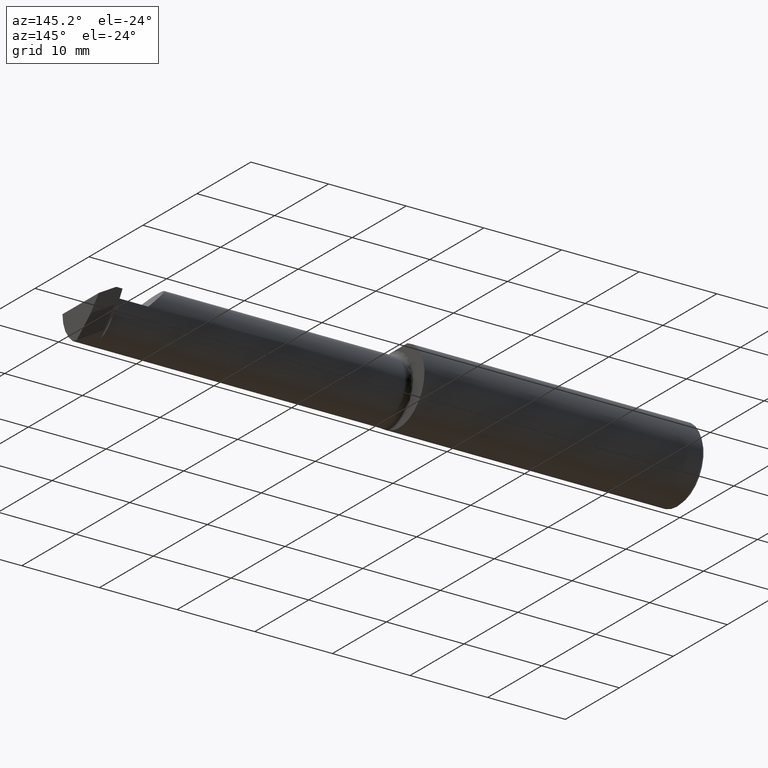
[diagram: clean part render]
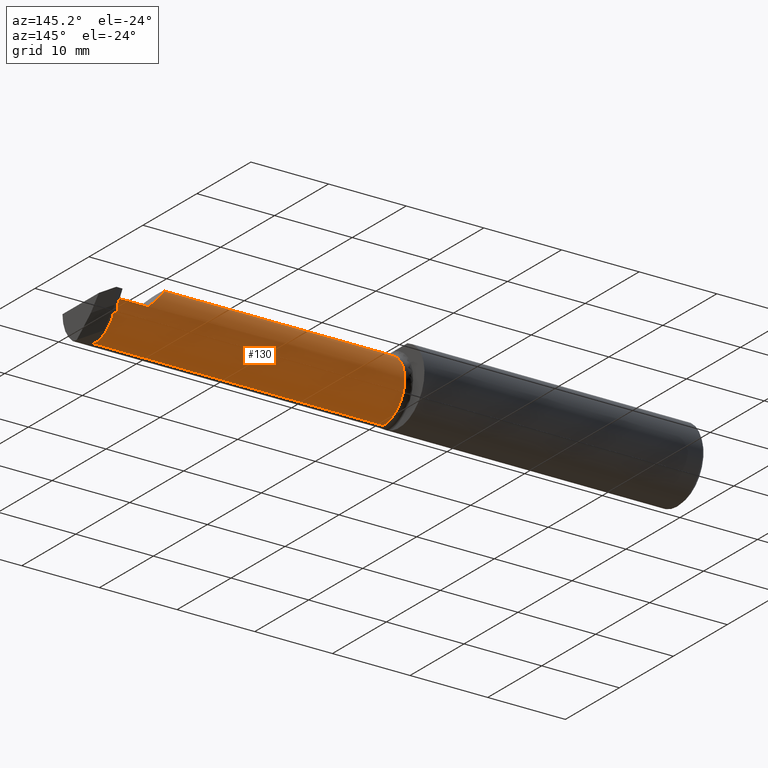
[diagram: same view with one face highlighted and labeled with its STEP entity id]
A machine part, auxiliary view. The second image highlights one B-rep face of the part: STEP entity #130.
In plain terms, the highlighted cylindrical surface (partial cylindrical patch) has radius 3.937 mm, axis along (-1, -0, -0).
Its self-contained STEP definition (entity closure, byte-faithful):
#10 = CARTESIAN_POINT ( 'NONE',  ( 1.425000000000000266, 0.07964999999999992919, -4.469813191451678053E-17 ) ) ;
#15 = CARTESIAN_POINT ( 'NONE',  ( 2.595350000000000268, 0.01528441802401224632, 0.1549999999999999989 ) ) ;
#18 = CIRCLE ( 'NONE', #151, 0.1549999999999999989 ) ;
#22 = CARTESIAN_POINT ( 'NONE',  ( 2.919999999999999485, 0.06139050547019519327, -0.07298653412620365044 ) ) ;
#30 = VERTEX_POINT ( 'NONE', #695 ) ;
#36 = CARTESIAN_POINT ( 'NONE',  ( 2.750000000000000444, -0.07535000000000005582, 0.000000000000000000 ) ) ;
#39 = AXIS2_PLACEMENT_3D ( 'NONE', #783, #477, #629 ) ;
#44 = CARTESIAN_POINT ( 'NONE',  ( 2.897371745677377319, 0.06655594585375997074, -0.06235144369900125216 ) ) ;
#46 = EDGE_LOOP ( 'NONE', ( #476, #926, #763, #946, #843, #685, #187, #140, #903, #776, #109, #464, #247 ) ) ;
#68 = CIRCLE ( 'NONE', #884, 0.1549999999999999989 ) ;
#71 = VERTEX_POINT ( 'NONE', #788 ) ;
#90 = CARTESIAN_POINT ( 'NONE',  ( 2.919999999999999929, -0.02721703491517946799, -0.1473370885830972143 ) ) ;
#109 = ORIENTED_EDGE ( 'NONE', *, *, #439, .T. ) ;
#126 = CARTESIAN_POINT ( 'NONE',  ( 1.425000000000000266, 0.06655594585375997074, -0.06235144369900125216 ) ) ;
#129 = CARTESIAN_POINT ( 'NONE',  ( 1.425000000000000266, 0.06139050547019519327, -0.07298653412620365044 ) ) ;
#130 = ADVANCED_FACE ( 'NONE', ( #848 ), #909, .T. ) ;
#140 = ORIENTED_EDGE ( 'NONE', *, *, #717, .F. ) ;
#151 = AXIS2_PLACEMENT_3D ( 'NONE', #639, #885, #202 ) ;
#156 = DIRECTION ( 'NONE',  ( -1.000000000000000000, -0.000000000000000000, -0.000000000000000000 ) ) ;
#164 = DIRECTION ( 'NONE',  ( 0.000000000000000000, 1.762482576557589218E-15, -1.000000000000000000 ) ) ;
#187 = ORIENTED_EDGE ( 'NONE', *, *, #221, .T. ) ;
#188 = DIRECTION ( 'NONE',  ( -1.000000000000000000, -0.000000000000000000, -0.000000000000000000 ) ) ;
#193 = CARTESIAN_POINT ( 'NONE',  ( 2.916847974081298478, 0.06139050547019519327, -0.07298653412620366432 ) ) ;
#198 = CARTESIAN_POINT ( 'NONE',  ( 2.897371745677377319, 0.06655594585375997074, -0.06235144369900125216 ) ) ;
#201 = VECTOR ( 'NONE', #832, 39.37007874015748143 ) ;
#202 = DIRECTION ( 'NONE',  ( 0.000000000000000000, 0.000000000000000000, 1.000000000000000000 ) ) ;
#221 = EDGE_CURVE ( 'NONE', #266, #241, #920, .T. ) ;
#237 = VERTEX_POINT ( 'NONE', #604 ) ;
#241 = VERTEX_POINT ( 'NONE', #773 ) ;
#245 = LINE ( 'NONE', #544, #403 ) ;
#247 = ORIENTED_EDGE ( 'NONE', *, *, #624, .T. ) ;
#260 = EDGE_CURVE ( 'NONE', #237, #266, #746, .T. ) ;
#264 = DIRECTION ( 'NONE',  ( -1.000000000000000000, -0.000000000000000000, -0.000000000000000000 ) ) ;
#266 = VERTEX_POINT ( 'NONE', #709 ) ;
#271 = VERTEX_POINT ( 'NONE', #328 ) ;
#298 = EDGE_CURVE ( 'NONE', #30, #71, #854, .T. ) ;
#301 = VECTOR ( 'NONE', #801, 39.37007874015748143 ) ;
#321 = DIRECTION ( 'NONE',  ( 1.000000000000000000, 0.000000000000000000, 0.000000000000000000 ) ) ;
#328 = CARTESIAN_POINT ( 'NONE',  ( 2.919999999999999485, -0.07534999999999998643, -0.1549999999999999156 ) ) ;
#330 = VECTOR ( 'NONE', #321, 39.37007874015748143 ) ;
#340 = VERTEX_POINT ( 'NONE', #484 ) ;
#346 = CARTESIAN_POINT ( 'NONE',  ( 2.905941521078384771, 0.07964999999999992919, -0.02154377157077449340 ) ) ;
#362 = AXIS2_PLACEMENT_3D ( 'NONE', #372, #156, #451 ) ;
#365 = LINE ( 'NONE', #126, #301 ) ;
#372 = CARTESIAN_POINT ( 'NONE',  ( 1.425000000000000266, -0.07535000000000005582, 0.000000000000000000 ) ) ;
#377 = VERTEX_POINT ( 'NONE', #193 ) ;
#381 = VERTEX_POINT ( 'NONE', #90 ) ;
#398 = CARTESIAN_POINT ( 'NONE',  ( 2.595350000000000712, -0.07535000000000005582, 0.1549999999999999989 ) ) ;
#403 = VECTOR ( 'NONE', #859, 39.37007874015748143 ) ;
#408 = EDGE_CURVE ( 'NONE', #757, #506, #365, .T. ) ;
#418 = VECTOR ( 'NONE', #188, 39.37007874015748143 ) ;
#435 = CARTESIAN_POINT ( 'NONE',  ( 2.910465799823616972, 0.07964999999999992919, 0.000000000000000000 ) ) ;
#439 = EDGE_CURVE ( 'NONE', #679, #377, #956, .T. ) ;
#449 = EDGE_CURVE ( 'NONE', #381, #271, #886, .T. ) ;
#451 = DIRECTION ( 'NONE',  ( 0.000000000000000000, 0.000000000000000000, 1.000000000000000000 ) ) ;
#464 = ORIENTED_EDGE ( 'NONE', *, *, #653, .T. ) ;
#476 = ORIENTED_EDGE ( 'NONE', *, *, #449, .T. ) ;
#477 = DIRECTION ( 'NONE',  ( 1.000000000000000000, 0.000000000000000000, 0.000000000000000000 ) ) ;
#481 = CARTESIAN_POINT ( 'NONE',  ( 2.916847974081298478, -0.02721703491517950962, -0.1473370885830972421 ) ) ;
#484 = CARTESIAN_POINT ( 'NONE',  ( 2.595350000000000712, -0.07535000000000005582, 0.1549999999999999989 ) ) ;
#502 = DIRECTION ( 'NONE',  ( -1.000000000000000000, -0.000000000000000000, -0.000000000000000000 ) ) ;
#506 = VERTEX_POINT ( 'NONE', #198 ) ;
#527 = LINE ( 'NONE', #599, #201 ) ;
#543 = VECTOR ( 'NONE', #589, 39.37007874015748143 ) ;
#544 = CARTESIAN_POINT ( 'NONE',  ( 1.425000000000000266, -0.02721703491517948187, -0.1473370885830972143 ) ) ;
#557 = EDGE_CURVE ( 'NONE', #271, #30, #527, .T. ) ;
#575 = CARTESIAN_POINT ( 'NONE',  ( 2.901513823449300755, 0.07522230237091670491, -0.04262764187959405815 ) ) ;
#580 = DIRECTION ( 'NONE',  ( 0.000000000000000000, 0.000000000000000000, 1.000000000000000000 ) ) ;
#589 = DIRECTION ( 'NONE',  ( -1.000000000000000000, -0.000000000000000000, -0.000000000000000000 ) ) ;
#591 = VERTEX_POINT ( 'NONE', #481 ) ;
#594 = AXIS2_PLACEMENT_3D ( 'NONE', #890, #502, #580 ) ;
#599 = CARTESIAN_POINT ( 'NONE',  ( 1.425000000000000266, -0.07535000000000004194, -0.1549999999999999989 ) ) ;
#604 = CARTESIAN_POINT ( 'NONE',  ( 2.750000000000000444, 0.07964960483820592019, 0.0003499999999995605151 ) ) ;
#605 = EDGE_CURVE ( 'NONE', #237, #340, #824, .T. ) ;
#619 = CARTESIAN_POINT ( 'NONE',  ( 2.750000000000000444, 0.07964960483820592019, 0.0003499999999995605151 ) ) ;
#624 = EDGE_CURVE ( 'NONE', #591, #381, #245, .T. ) ;
#629 = DIRECTION ( 'NONE',  ( 0.000000000000000000, 0.000000000000000000, -1.000000000000000000 ) ) ;
#634 = CARTESIAN_POINT ( 'NONE',  ( 2.916847974081298478, -0.07535000000000005582, 0.000000000000000000 ) ) ;
#639 = CARTESIAN_POINT ( 'NONE',  ( 2.919999999999999929, -0.07535000000000005582, 0.000000000000000000 ) ) ;
#642 = DIRECTION ( 'NONE',  ( -1.000000000000000000, -0.000000000000000000, -0.000000000000000000 ) ) ;
#653 = EDGE_CURVE ( 'NONE', #377, #591, #68, .T. ) ;
#679 = VERTEX_POINT ( 'NONE', #22 ) ;
#685 = ORIENTED_EDGE ( 'NONE', *, *, #260, .T. ) ;
#695 = CARTESIAN_POINT ( 'NONE',  ( 1.450000000000000178, -0.07535000000000004194, -0.1549999999999999989 ) ) ;
#709 = CARTESIAN_POINT ( 'NONE',  ( 2.750000000000000444, 0.07964999999999992919, -4.469813191451678053E-17 ) ) ;
#717 = EDGE_CURVE ( 'NONE', #506, #241, #721, .T. ) ;
#721 =( BOUNDED_CURVE ( )  B_SPLINE_CURVE ( 3, ( #44, #575, #346, #435 ),
 .UNSPECIFIED., .F., .T. ) 
 B_SPLINE_CURVE_WITH_KNOTS ( ( 4, 4 ),
 ( 1.156804228221841147, 1.570796326794896780 ),
 .UNSPECIFIED. ) 
 CURVE ( )  GEOMETRIC_REPRESENTATION_ITEM ( )  RATIONAL_B_SPLINE_CURVE ( ( 1.000000000000000000, 0.9857684695413670983, 0.9857684695413670983, 1.000000000000000000 ) ) 
 REPRESENTATION_ITEM ( '' )  );
#725 = CARTESIAN_POINT ( 'NONE',  ( 1.425000000000000266, -0.07535000000000005582, 0.1549999999999999989 ) ) ;
#746 = CIRCLE ( 'NONE', #963, 0.1549999999999999989 ) ;
#757 = VERTEX_POINT ( 'NONE', #873 ) ;
#763 = ORIENTED_EDGE ( 'NONE', *, *, #298, .T. ) ;
#771 = EDGE_CURVE ( 'NONE', #757, #679, #18, .T. ) ;
#773 = CARTESIAN_POINT ( 'NONE',  ( 2.910465799823616972, 0.07964999999999992919, 0.000000000000000000 ) ) ;
#776 = ORIENTED_EDGE ( 'NONE', *, *, #771, .T. ) ;
#780 = DIRECTION ( 'NONE',  ( 0.000000000000000000, 0.000000000000000000, 1.000000000000000000 ) ) ;
#783 = CARTESIAN_POINT ( 'NONE',  ( 1.450000000000000178, -0.07535000000000005582, 0.000000000000000000 ) ) ;
#788 = CARTESIAN_POINT ( 'NONE',  ( 1.450000000000000178, -0.07535000000000005582, 0.1549999999999999989 ) ) ;
#796 = LINE ( 'NONE', #725, #418 ) ;
#801 = DIRECTION ( 'NONE',  ( -1.000000000000000000, -0.000000000000000000, -0.000000000000000000 ) ) ;
#824 =( BOUNDED_CURVE ( )  B_SPLINE_CURVE ( 3, ( #619, #863, #15, #398 ),
 .UNSPECIFIED., .F., .T. ) 
 B_SPLINE_CURVE_WITH_KNOTS ( ( 4, 4 ),
 ( 4.714647046819745668, 6.283185307179586232 ),
 .UNSPECIFIED. ) 
 CURVE ( )  GEOMETRIC_REPRESENTATION_ITEM ( )  RATIONAL_B_SPLINE_CURVE ( ( 1.000000000000000000, 0.8052697849207448577, 0.8052697849207448577, 1.000000000000000000 ) ) 
 REPRESENTATION_ITEM ( '' )  );
#832 = DIRECTION ( 'NONE',  ( -1.000000000000000000, -0.000000000000000000, -0.000000000000000000 ) ) ;
#843 = ORIENTED_EDGE ( 'NONE', *, *, #605, .F. ) ;
#848 = FACE_OUTER_BOUND ( 'NONE', #46, .T. ) ;
#854 = CIRCLE ( 'NONE', #39, 0.1549999999999999989 ) ;
#859 = DIRECTION ( 'NONE',  ( 1.000000000000000000, 0.000000000000000000, 0.000000000000000000 ) ) ;
#861 = EDGE_CURVE ( 'NONE', #340, #71, #796, .T. ) ;
#863 = CARTESIAN_POINT ( 'NONE',  ( 2.659365813042177340, 0.07944494647492603145, 0.09098418695782346799 ) ) ;
#873 = CARTESIAN_POINT ( 'NONE',  ( 2.919999999999999929, 0.06655594585375997074, -0.06235144369900125216 ) ) ;
#884 = AXIS2_PLACEMENT_3D ( 'NONE', #634, #264, #164 ) ;
#885 = DIRECTION ( 'NONE',  ( -1.000000000000000000, -0.000000000000000000, -0.000000000000000000 ) ) ;
#886 = CIRCLE ( 'NONE', #594, 0.1549999999999999989 ) ;
#890 = CARTESIAN_POINT ( 'NONE',  ( 2.919999999999999929, -0.07535000000000005582, 0.000000000000000000 ) ) ;
#903 = ORIENTED_EDGE ( 'NONE', *, *, #408, .F. ) ;
#909 = CYLINDRICAL_SURFACE ( 'NONE', #362, 0.1549999999999999989 ) ;
#920 = LINE ( 'NONE', #10, #330 ) ;
#926 = ORIENTED_EDGE ( 'NONE', *, *, #557, .T. ) ;
#946 = ORIENTED_EDGE ( 'NONE', *, *, #861, .F. ) ;
#956 = LINE ( 'NONE', #129, #543 ) ;
#963 = AXIS2_PLACEMENT_3D ( 'NONE', #36, #642, #780 ) ;